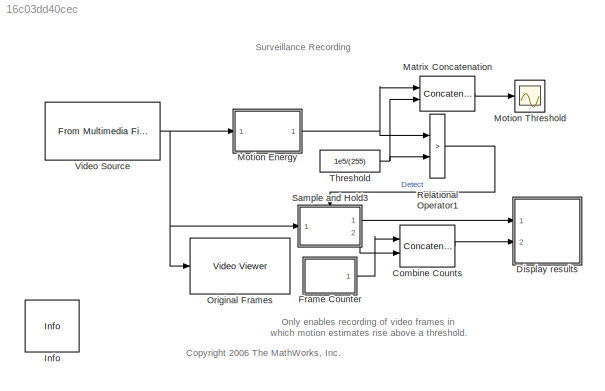
MODEL slx_16c03dd40cec
KIND model
CONFIG AbsTol = auto
CONFIG FixedStep = auto
CONFIG MaxStep = auto
CONFIG MinStep = auto
CONFIG RelTol = 1e-3
CONFIG SampleTimeConstraint = Unconstrained
CONFIG Solver = FixedStepDiscrete
CONFIG SolverMode = SingleTasking
CONFIG SolverName = FixedStepDiscrete
CONFIG StartTime = 0.0
CONFIG StopTime = inf
BLOCK [Concatenate] Combine Counts
  ConcatenateDimension = 2
  Mode = Multidimensional array
  Ports = [2, 1]
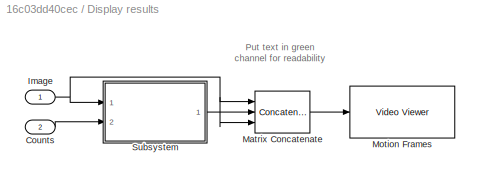
BLOCK [SubSystem] Display results
  Ports = [2]
  RequestExecContextInheritance = off
  Variant = off
BLOCK [Inport] Display results/Counts
  IconDisplay = Port number
  Port = 2
BLOCK [Inport] Display results/Image
  IconDisplay = Port number
BLOCK [Concatenate] Display results/Matrix Concatenate
  ConcatenateDimension = 3
  Mode = Multidimensional array
  NumInputs = 3
  Ports = [3, 1]
BLOCK [Reference] Display results/Motion Frames  REF=visionsinks/Video Viewer
  Ports = [1]
  SourceBlock = visionsinks/Video Viewer
  SourceType = Video Viewer
  UserDataPersistent = on
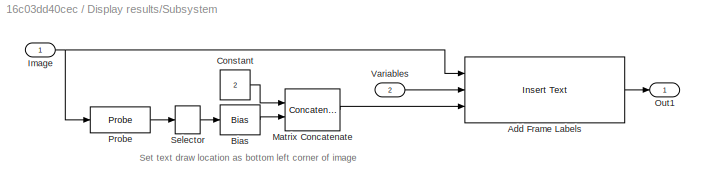
BLOCK [SubSystem] Display results/Subsystem
  Ports = [2, 1]
  RequestExecContextInheritance = off
  Variant = off
BLOCK [Reference] Display results/Subsystem/Add Frame Labels  REF=visiontextngfix/Insert Text
  Ports = [3, 1]
  SourceBlock = visiontextngfix/Insert Text
  SourceType = Insert Text
BLOCK [Bias] Display results/Subsystem/Bias
  Bias = -30
  SaturateOnIntegerOverflow = off
BLOCK [Constant] Display results/Subsystem/Constant
  OutDataTypeStr = int32
  Value = 2
BLOCK [Inport] Display results/Subsystem/Image
  IconDisplay = Port number
BLOCK [Concatenate] Display results/Subsystem/Matrix Concatenate
  ConcatenateDimension = 2
  Mode = Multidimensional array
  Ports = [2, 1]
BLOCK [Outport] Display results/Subsystem/Out1
  IconDisplay = Port number
BLOCK [Probe] Display results/Subsystem/Probe
  Ports = [1, 1]
  ProbeComplexSignal = off
  ProbeDimensionsDataType = int32
  ProbeSampleTime = off
  ProbeSignalDimensions = on
  ProbeWidth = off
BLOCK [Selector] Display results/Subsystem/Selector
  IndexOptions = Index vector (dialog)
  Indices = 1
  InputPortWidth = 2
  OutputSizes = 1
  Ports = [1, 1]
BLOCK [Inport] Display results/Subsystem/Variables
  IconDisplay = Port number
  Port = 2
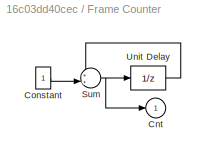
BLOCK [SubSystem] Frame Counter
  Ports = [0, 1]
  RequestExecContextInheritance = off
  Variant = off
BLOCK [Outport] Frame Counter/ Cnt
  IconDisplay = Port number
BLOCK [Constant] Frame Counter/Constant
  OutDataTypeStr = int32
BLOCK [Sum] Frame Counter/Sum
  IconShape = round
  InputSameDT = off
  Inputs = ++|
  Ports = [2, 1]
  SaturateOnIntegerOverflow = off
BLOCK [UnitDelay] Frame Counter/Unit Delay
  InputProcessing = Elements as channels (sample based)
  SampleTime = -1
BLOCK [Reference] Info  REF=vipmisc/Info
  Ports = []
  SourceBlock = vipmisc/Info
  SourceType = Info
BLOCK [Concatenate] Matrix Concatenation
  ConcatenateDimension = 2
  Mode = Multidimensional array
  Ports = [2, 1]
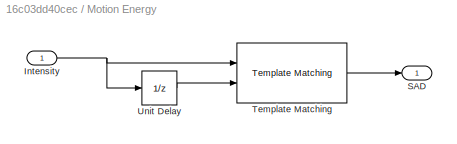
BLOCK [SubSystem] Motion Energy
  Ports = [1, 1]
  RequestExecContextInheritance = off
  Variant = off
BLOCK [Inport] Motion Energy/Intensity
  IconDisplay = Port number
BLOCK [Outport] Motion Energy/SAD
  IconDisplay = Port number
BLOCK [Reference] Motion Energy/Template Matching  REF=visionanalysis/Template Matching
  Ports = [2, 1]
  SourceBlock = visionanalysis/Template Matching
  SourceType = Template Matching
BLOCK [UnitDelay] Motion Energy/Unit Delay
  InputProcessing = Elements as channels (sample based)
  SampleTime = -1
BLOCK [Scope] Motion Threshold
  Ports = [1]
  ScopeSpecificationString = Simulink.scopes.TimeScopeBlockCfg('CurrentConfiguration', extmgr.ConfigurationSet(extmgr.Configuration('Core','General UI',true),extmgr.Configuration('Core','Source UI',true),extmgr.Configuration('Sources','WiredSimulink',true,'DataLoggingSaveFormat','StructureWithTime','DataLoggingLimitDataPoints',true,'DataLoggingDecimation','1','DataLoggingDecimateData',true),extmgr.Configuration('Visuals','Tim...<+1683ch>
BLOCK [Reference] Original Frames  REF=visionsinks/Video Viewer
  Ports = [1]
  SourceBlock = visionsinks/Video Viewer
  SourceType = Video Viewer
  UserDataPersistent = on
BLOCK [RelationalOperator] Relational Operator1
  Operator = >
  OutDataTypeStr = boolean
  Ports = [2, 1]
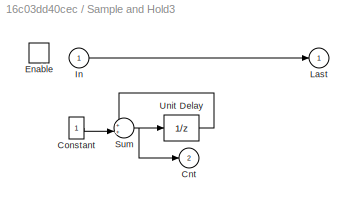
BLOCK [SubSystem] Sample and Hold3
  Ports = [1, 2, 1]
  RequestExecContextInheritance = off
  TreatAsAtomicUnit = on
  Variant = off
BLOCK [Outport] Sample and Hold3/ Cnt
  IconDisplay = Port number
  Port = 2
BLOCK [Constant] Sample and Hold3/Constant
  OutDataTypeStr = int32
BLOCK [EnablePort] Sample and Hold3/Enable
  Ports = []
  PropagateVarSize = During execution
BLOCK [Inport] Sample and Hold3/In
  IconDisplay = Port number
BLOCK [Outport] Sample and Hold3/Last
  IconDisplay = Port number
BLOCK [Sum] Sample and Hold3/Sum
  IconShape = round
  InputSameDT = off
  Inputs = ++|
  Ports = [2, 1]
  SaturateOnIntegerOverflow = off
BLOCK [UnitDelay] Sample and Hold3/Unit Delay
  InputProcessing = Elements as channels (sample based)
  SampleTime = -1
BLOCK [Constant] Threshold
  OutDataTypeStr = Inherit: Inherit via back propagation
  Value = 1e5/(255)
  VectorParams1D = off
BLOCK [Reference] Video Source  REF=dspvision/From Multimedia File
  Ports = [0, 1]
  SourceBlock = dspvision/From Multimedia File
  SourceType = From Multimedia File
ANNOTATION (root): <copyright redacted>
ANNOTATION (root): Only enables recording of video frames in which motion estimates rise above a threshold.
ANNOTATION (root): Surveillance Recording
ANNOTATION Display results: Put text in green channel for readability
ANNOTATION Display results/Subsystem: Set text draw location as bottom left corner of image
LINE Combine Counts:1 -> Display results:2
LINE Display results/Counts:1 -> Display results/Subsystem:2
NET Display results/Image:1 -> Display results/Matrix Concatenate:1, Display results/Matrix Concatenate:3, Display results/Subsystem:1
LINE Display results/Matrix Concatenate:1 -> Display results/Motion Frames:1
LINE Display results/Subsystem/Add Frame Labels:1 -> Display results/Subsystem/Out1:1
LINE Display results/Subsystem/Bias:1 -> Display results/Subsystem/Matrix Concatenate:2
LINE Display results/Subsystem/Constant:1 -> Display results/Subsystem/Matrix Concatenate:1
NET Display results/Subsystem/Image:1 -> Display results/Subsystem/Add Frame Labels:1, Display results/Subsystem/Probe:1
LINE Display results/Subsystem/Matrix Concatenate:1 -> Display results/Subsystem/Add Frame Labels:3
LINE Display results/Subsystem/Probe:1 -> Display results/Subsystem/Selector:1
LINE Display results/Subsystem/Selector:1 -> Display results/Subsystem/Bias:1
LINE Display results/Subsystem/Variables:1 -> Display results/Subsystem/Add Frame Labels:2
LINE Display results/Subsystem:1 -> Display results/Matrix Concatenate:2
LINE Frame Counter/Constant:1 -> Frame Counter/Sum:2
NET Frame Counter/Sum:1 -> Frame Counter/ Cnt:1, Frame Counter/Unit Delay:1
LINE Frame Counter/Unit Delay:1 -> Frame Counter/Sum:1
LINE Frame Counter:1 -> Combine Counts:1
LINE Matrix Concatenation:1 -> Motion Threshold:1
NET Motion Energy/Intensity:1 -> Motion Energy/Template Matching:1, Motion Energy/Unit Delay:1
LINE Motion Energy/Template Matching:1 -> Motion Energy/SAD:1
LINE Motion Energy/Unit Delay:1 -> Motion Energy/Template Matching:2
NET Motion Energy:1 -> Matrix Concatenation:1, Relational Operator1:1
LINE Relational Operator1:1 -> Sample and Hold3:enable
LINE Sample and Hold3/Constant:1 -> Sample and Hold3/Sum:2
LINE Sample and Hold3/In:1 -> Sample and Hold3/Last:1
NET Sample and Hold3/Sum:1 -> Sample and Hold3/ Cnt:1, Sample and Hold3/Unit Delay:1
LINE Sample and Hold3/Unit Delay:1 -> Sample and Hold3/Sum:1
LINE Sample and Hold3:1 -> Display results:1
LINE Sample and Hold3:2 -> Combine Counts:2
NET Threshold:1 -> Matrix Concatenation:2, Relational Operator1:2
NET Video Source:1 -> Motion Energy:1, Original Frames:1, Sample and Hold3:1
note: NET lines group one-source signal fan-out (src -> all destinations, sorted); 1:1 wires keep LINE
